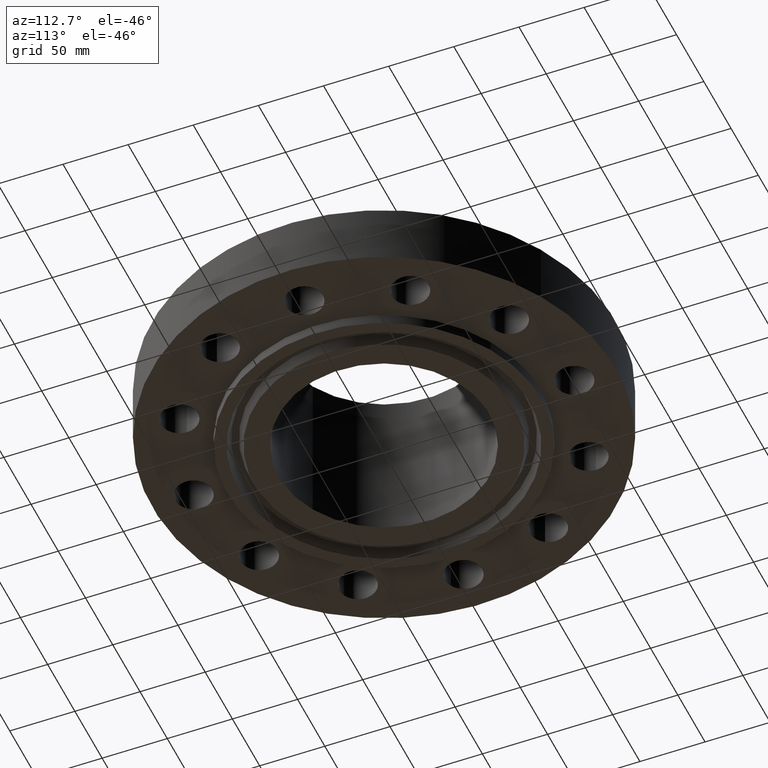
[diagram: clean part render]
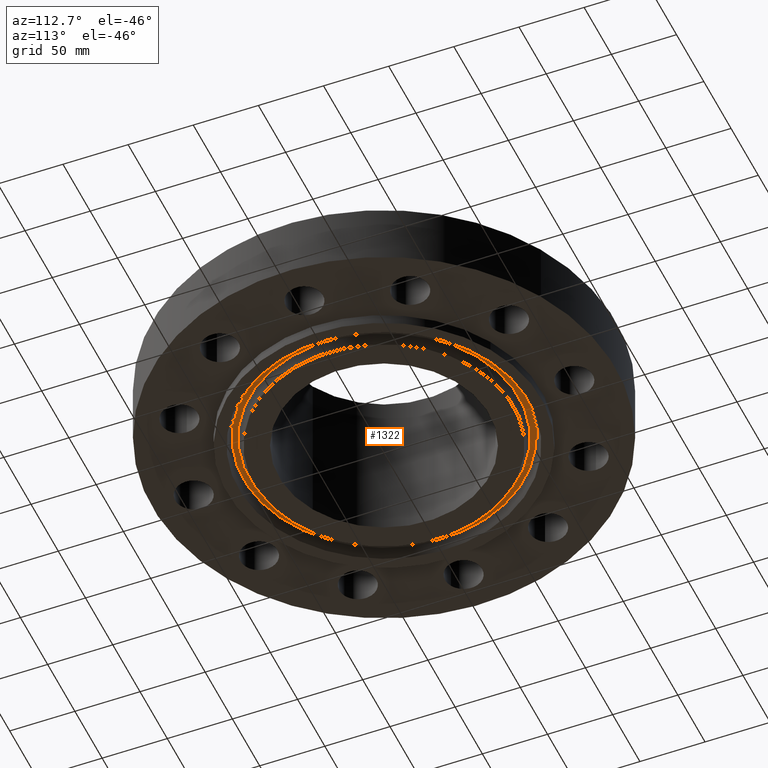
[diagram: same view with one face highlighted and labeled with its STEP entity id]
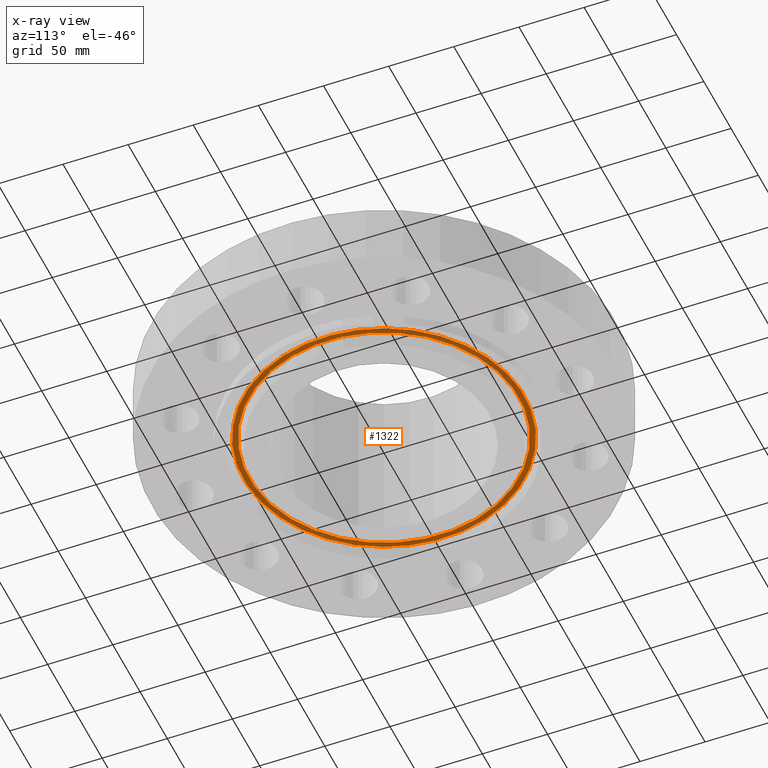
[diagram: x-ray of the same camera — body ghosted, the highlighted face saturated]
A machine part, auxiliary view. The second image highlights one B-rep face of the part: STEP entity #1322.
The next image is the same camera in x-ray: the body ghosted, the highlighted face saturated — about 0% of this face is hidden behind the body in this view.
In plain terms, the highlighted planar face has unit normal (0, 0, -1).
Its self-contained STEP definition (entity closure, byte-faithful):
#484=AXIS2_PLACEMENT_3D('Plane Axis2P3D',#481,#482,#483) ;
#1244=AXIS2_PLACEMENT_3D('Circle Axis2P3D',#1242,#1243,$) ;
#1290=AXIS2_PLACEMENT_3D('Circle Axis2P3D',#1288,#1289,$) ;
#1306=AXIS2_PLACEMENT_3D('Circle Axis2P3D',#1304,#1305,$) ;
#1315=AXIS2_PLACEMENT_3D('Circle Axis2P3D',#1313,#1314,$) ;
#481=CARTESIAN_POINT('Axis2P3D Location',(0.,4.75000000002,0.)) ;
#1239=CARTESIAN_POINT('Vertex',(-2.03162369684,3.7188622322,-3.1907984566E-016)) ;
#1242=CARTESIAN_POINT('Axis2P3D Location',(0.,0.,-3.1907984566E-016)) ;
#1246=CARTESIAN_POINT('Vertex',(2.03162369684,-3.7188622322,-3.1907984566E-016)) ;
#1288=CARTESIAN_POINT('Axis2P3D Location',(0.,0.,-3.1907984566E-016)) ;
#1304=CARTESIAN_POINT('Axis2P3D Location',(0.,0.,0.)) ;
#1308=CARTESIAN_POINT('Vertex',(1.9538408056,-3.57648160483,1.92322098754E-016)) ;
#1310=CARTESIAN_POINT('Vertex',(-1.9538408056,3.57648160483,1.92322098754E-016)) ;
#1313=CARTESIAN_POINT('Axis2P3D Location',(0.,0.,0.)) ;
#482=DIRECTION('Axis2P3D Direction',(0.,0.,-0.0393700787402)) ;
#483=DIRECTION('Axis2P3D XDirection',(0.0393700787402,0.,0.)) ;
#1243=DIRECTION('Axis2P3D Direction',(0.,0.,0.0393700787402)) ;
#1289=DIRECTION('Axis2P3D Direction',(0.,0.,0.0393700787402)) ;
#1305=DIRECTION('Axis2P3D Direction',(0.,0.,-0.0393700787402)) ;
#1314=DIRECTION('Axis2P3D Direction',(0.,0.,-0.0393700787402)) ;
#1301=ORIENTED_EDGE('',*,*,#1248,.F.) ;
#1302=ORIENTED_EDGE('',*,*,#1292,.F.) ;
#1319=ORIENTED_EDGE('',*,*,#1312,.T.) ;
#1320=ORIENTED_EDGE('',*,*,#1317,.T.) ;
#1321=FACE_BOUND('',#1318,.T.) ;
#1322=ADVANCED_FACE('PartBody',(#1303,#1321),#485,.T.) ;
#1245=CIRCLE('generated circle',#1244,4.23762093015) ;
#1291=CIRCLE('generated circle',#1290,4.23762093015) ;
#1307=CIRCLE('generated circle',#1306,4.07537906989) ;
#1316=CIRCLE('generated circle',#1315,4.07537906989) ;
#1248=EDGE_CURVE('',#1240,#1247,#1245,.T.) ;
#1292=EDGE_CURVE('',#1247,#1240,#1291,.T.) ;
#1312=EDGE_CURVE('',#1309,#1311,#1307,.F.) ;
#1317=EDGE_CURVE('',#1311,#1309,#1316,.F.) ;
#1300=EDGE_LOOP('',(#1301,#1302)) ;
#1318=EDGE_LOOP('',(#1319,#1320)) ;
#1303=FACE_OUTER_BOUND('',#1300,.T.) ;
#485=PLANE('',#484) ;
#1240=VERTEX_POINT('',#1239) ;
#1247=VERTEX_POINT('',#1246) ;
#1309=VERTEX_POINT('',#1308) ;
#1311=VERTEX_POINT('',#1310) ;